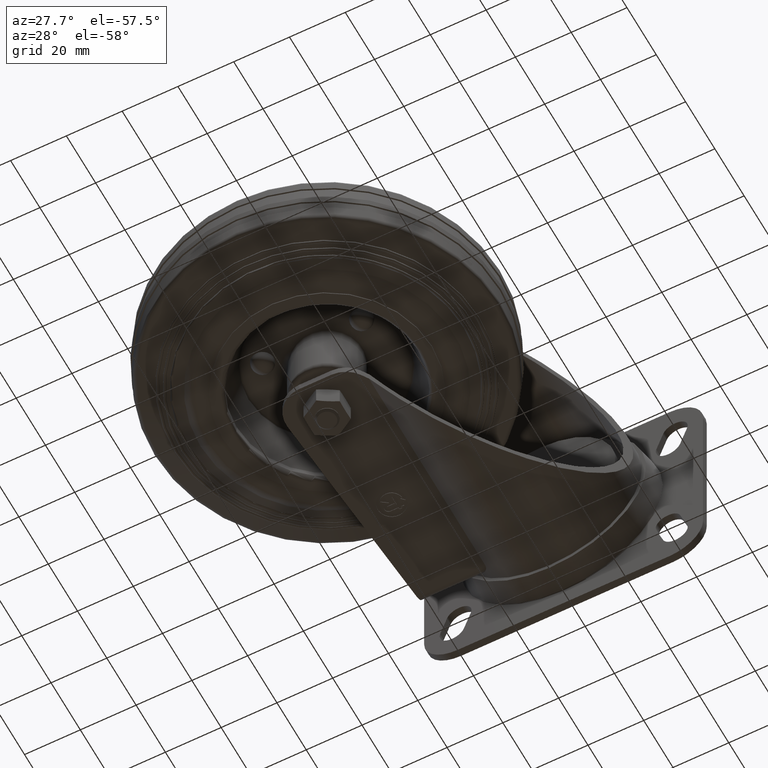
[diagram: clean part render]
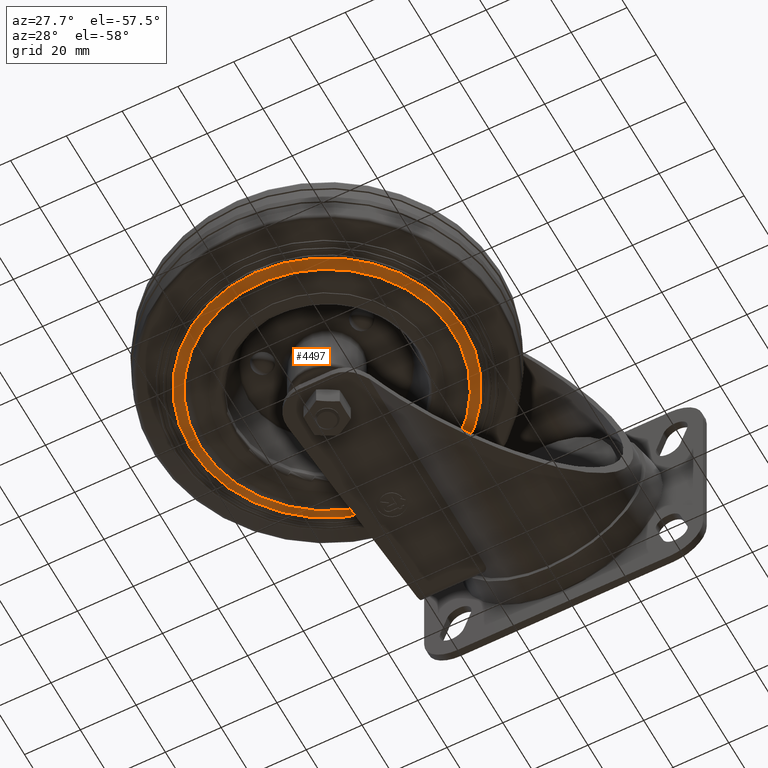
[diagram: same view with one face highlighted and labeled with its STEP entity id]
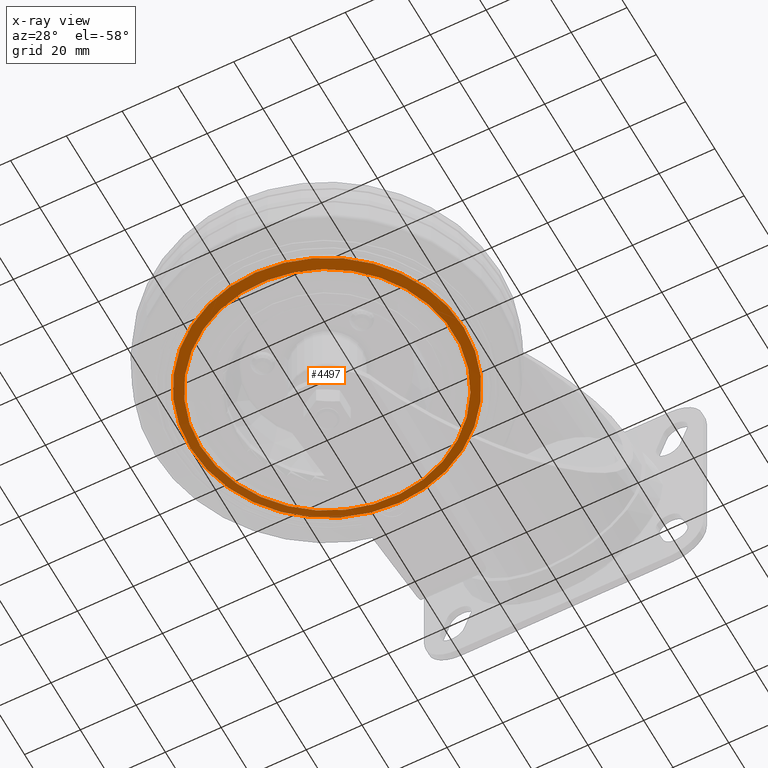
[diagram: x-ray of the same camera — body ghosted, the highlighted face saturated]
A machine part, auxiliary view. The second image highlights one B-rep face of the part: STEP entity #4497.
The next image is the same camera in x-ray: the body ghosted, the highlighted face saturated — about 0% of this face is hidden behind the body in this view.
In plain terms, the highlighted conical surface has half-angle 71 deg.
Its self-contained STEP definition (entity closure, byte-faithful):
#101=CONICAL_SURFACE('',#4986,48.9887515493236,1.23918376891597);
#321=CIRCLE('',#4984,45.47546624372);
#323=CIRCLE('',#4987,48.9887515493236);
#538=FACE_OUTER_BOUND('',#819,.T.);
#819=EDGE_LOOP('',(#2990,#2991,#2992,#2993));
#1142=LINE('',#7036,#1493);
#1493=VECTOR('',#5644,48.9887515493236);
#1873=VERTEX_POINT('',#7030);
#1874=VERTEX_POINT('',#7034);
#2304=EDGE_CURVE('',#1873,#1873,#321,.T.);
#2306=EDGE_CURVE('',#1874,#1874,#323,.T.);
#2307=EDGE_CURVE('',#1874,#1873,#1142,.T.);
#2990=ORIENTED_EDGE('',*,*,#2306,.F.);
#2991=ORIENTED_EDGE('',*,*,#2307,.T.);
#2992=ORIENTED_EDGE('',*,*,#2304,.T.);
#2993=ORIENTED_EDGE('',*,*,#2307,.F.);
#4497=ADVANCED_FACE('',(#538),#101,.T.);
#4984=AXIS2_PLACEMENT_3D('',#7031,#5636,#5637);
#4986=AXIS2_PLACEMENT_3D('',#7033,#5640,#5641);
#4987=AXIS2_PLACEMENT_3D('',#7035,#5642,#5643);
#5636=DIRECTION('center_axis',(1.,0.,0.));
#5637=DIRECTION('ref_axis',(0.,0.,-1.));
#5640=DIRECTION('center_axis',(1.,0.,0.));
#5641=DIRECTION('ref_axis',(0.,0.,-1.));
#5642=DIRECTION('center_axis',(1.,0.,0.));
#5643=DIRECTION('ref_axis',(0.,0.,-1.));
#5644=DIRECTION('',(-0.325568154457161,1.15792629714207E-16,-0.945518575599316));
#7030=CARTESIAN_POINT('',(5.88798292433076,-5.56913841751052E-15,45.47546624372));
#7031=CARTESIAN_POINT('Origin',(5.88798292433076,0.,0.));
#7033=CARTESIAN_POINT('Origin',(7.09770406841492,0.,0.));
#7034=CARTESIAN_POINT('',(7.09770406841492,-5.99939177791041E-15,48.9887515493236));
#7035=CARTESIAN_POINT('Origin',(7.09770406841492,0.,0.));
#7036=CARTESIAN_POINT('',(7.09770406841492,-5.99939177791041E-15,48.9887515493236));